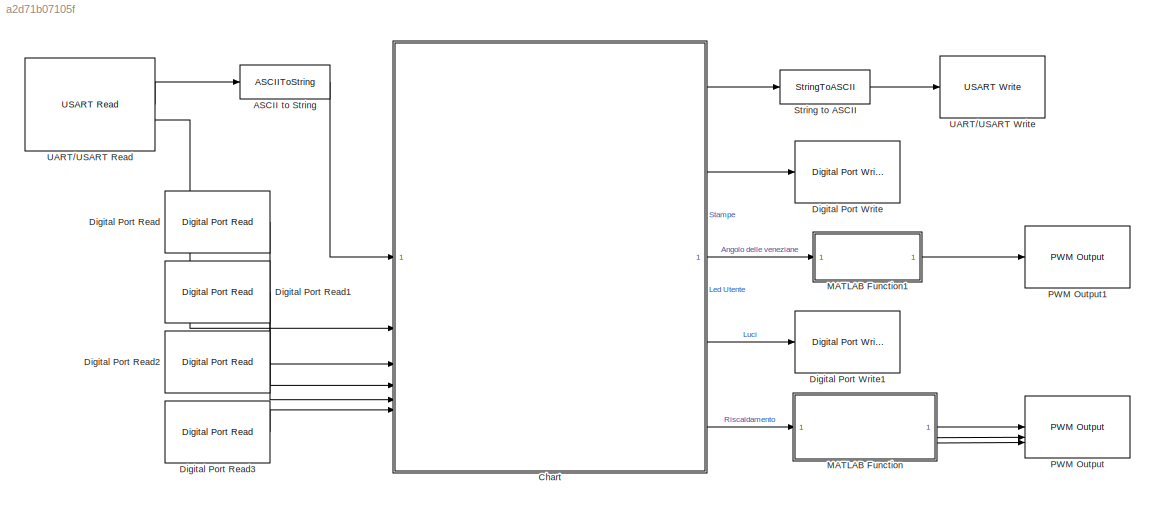
MODEL slx_a2d71b07105f
KIND model
CONFIG AbsTol = auto
CONFIG EnableMultiTasking = on
CONFIG FixedStep = 0.5
CONFIG MaxStep = auto
CONFIG MinStep = auto
CONFIG RelTol = 1e-3
CONFIG SampleTimeConstraint = Unconstrained
CONFIG SolverName = FixedStepDiscrete
CONFIG StartTime = 0.0
CONFIG StopTime = 300
BLOCK [ASCIIToString] ASCII to String
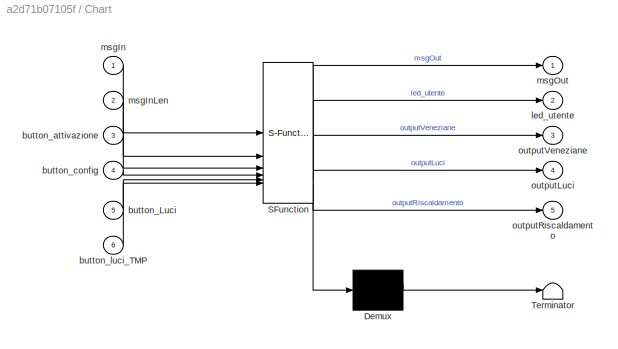
BLOCK [SubSystem] Chart
  ErrorFcn = Stateflow.Translate.translate
  PermitHierarchicalResolution = ExplicitOnly
  SFBlockType = Chart
  TreatAsAtomicUnit = on
BLOCK [Demux] Chart/ Demux 
  Outputs = 1
BLOCK [S-Function] Chart/ SFunction 
  EnableBusSupport = on
  FunctionName = sf_sfun
  PortCounts = [6 6]
  SFcnIsStateOwnerBlock = off
  SFunctionDeploymentMode = off
  Tag = Stateflow S-Function 3
BLOCK [Terminator] Chart/ Terminator 
BLOCK [Inport] Chart/button_Luci
  Port = 5
BLOCK [Inport] Chart/button_attivazione
  Port = 3
BLOCK [Inport] Chart/button_config
  Port = 4
BLOCK [Inport] Chart/button_luci_TMP
  Port = 6
BLOCK [Outport] Chart/led_utente
  Port = 2
BLOCK [Inport] Chart/msgIn
BLOCK [Inport] Chart/msgInLen
  Port = 2
BLOCK [Outport] Chart/msgOut
BLOCK [Outport] Chart/outputLuci
  Port = 4
BLOCK [Outport] Chart/outputRiscaldamento
  Port = 5
BLOCK [Outport] Chart/outputVeneziane
  Port = 3
BLOCK [Reference] Digital Port Read  REF=stm32f4xxblockslib/Digital Port Read
  LibrarySourceBlock = stm32g4xxblockslib/Digital Port Read
  SourceBlock = stm32f4xxblockslib/Digital Port Read
  SourceType = stm32cube.blocks.DigitalPortRead
BLOCK [Reference] Digital Port Read1  REF=stm32f4xxblockslib/Digital Port Read
  LibrarySourceBlock = stm32g4xxblockslib/Digital Port Read
  SourceBlock = stm32f4xxblockslib/Digital Port Read
  SourceType = stm32cube.blocks.DigitalPortRead
BLOCK [Reference] Digital Port Read2  REF=stm32f4xxblockslib/Digital Port Read
  LibrarySourceBlock = stm32g4xxblockslib/Digital Port Read
  SourceBlock = stm32f4xxblockslib/Digital Port Read
  SourceType = stm32cube.blocks.DigitalPortRead
BLOCK [Reference] Digital Port Read3  REF=stm32f4xxblockslib/Digital Port Read
  LibrarySourceBlock = stm32g4xxblockslib/Digital Port Read
  SourceBlock = stm32f4xxblockslib/Digital Port Read
  SourceType = stm32cube.blocks.DigitalPortRead
BLOCK [Reference] Digital Port Write  REF=stm32f4xxblockslib/Digital Port Write
  LibrarySourceBlock = stm32g4xxblockslib/Digital Port Write
  SourceBlock = stm32f4xxblockslib/Digital Port Write
  SourceType = stm32cube.blocks.DigitalPortWrite
BLOCK [Reference] Digital Port Write1  REF=stm32f4xxblockslib/Digital Port Write
  LibrarySourceBlock = stm32g4xxblockslib/Digital Port Write
  SourceBlock = stm32f4xxblockslib/Digital Port Write
  SourceType = stm32cube.blocks.DigitalPortWrite
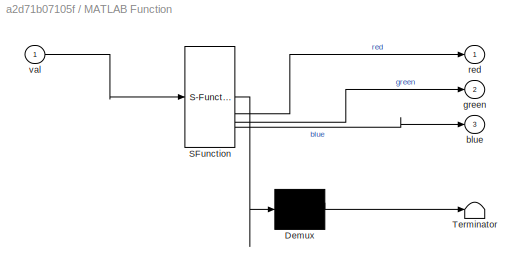
BLOCK [SubSystem] MATLAB Function
  ErrorFcn = Stateflow.Translate.translate
  PermitHierarchicalResolution = ExplicitOnly
  SFBlockType = MATLAB Function
  TreatAsAtomicUnit = on
BLOCK [Demux] MATLAB Function/ Demux 
  Outputs = 1
BLOCK [S-Function] MATLAB Function/ SFunction 
  EnableBusSupport = on
  FunctionName = sf_sfun
  PortCounts = [1 4]
  SFcnIsStateOwnerBlock = off
  SFunctionDeploymentMode = off
  Tag = Stateflow S-Function 2
BLOCK [Terminator] MATLAB Function/ Terminator 
BLOCK [Outport] MATLAB Function/blue
  Port = 3
BLOCK [Outport] MATLAB Function/green
  Port = 2
BLOCK [Outport] MATLAB Function/red
BLOCK [Inport] MATLAB Function/val
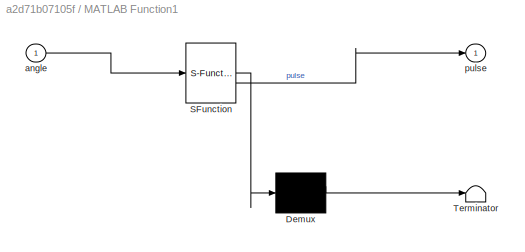
BLOCK [SubSystem] MATLAB Function1
  ErrorFcn = Stateflow.Translate.translate
  PermitHierarchicalResolution = ExplicitOnly
  SFBlockType = MATLAB Function
  TreatAsAtomicUnit = on
BLOCK [Demux] MATLAB Function1/ Demux 
  Outputs = 1
BLOCK [S-Function] MATLAB Function1/ SFunction 
  EnableBusSupport = on
  FunctionName = sf_sfun
  PortCounts = [1 2]
  SFcnIsStateOwnerBlock = off
  SFunctionDeploymentMode = off
  Tag = Stateflow S-Function 1
BLOCK [Terminator] MATLAB Function1/ Terminator 
BLOCK [Inport] MATLAB Function1/angle
BLOCK [Outport] MATLAB Function1/pulse
BLOCK [Reference] PWM Output  REF=stm32g4xxblockslib/PWM Output
  SourceBlock = stm32g4xxblockslib/PWM Output
  SourceType = stm32cube.blocks.PWMOutput
BLOCK [Reference] PWM Output1  REF=stm32g4xxblockslib/PWM Output
  SourceBlock = stm32g4xxblockslib/PWM Output
  SourceType = stm32cube.blocks.PWMOutput
BLOCK [StringToASCII] String to ASCII
  OutputVectorSize = 127
BLOCK [Reference] UART//USART Read  REF=stm32blockslib/UART//USART Read
  LibrarySourceBlock = stm32g4xxblockslib/UART//USART Read
  SourceBlock = stm32blockslib/UART//USART Read
  SourceType = stm32cube.blocks.UARTRead
BLOCK [Reference] UART//USART Write  REF=stm32blockslib/UART//USART Write
  LibrarySourceBlock = stm32g4xxblockslib/UART//USART Write
  SourceBlock = stm32blockslib/UART//USART Write
  SourceType = stm32cube.blocks.UARTWrite
LINE ASCII to String:1 -> Chart:1
LINE Chart:1 -> String to ASCII:1
LINE Chart:2 -> Digital Port Write:1
LINE Chart:3 -> MATLAB Function1:1
LINE Chart:4 -> Digital Port Write1:1
LINE Chart:5 -> MATLAB Function:1
LINE Digital Port Read1:1 -> Chart:4
LINE Digital Port Read2:1 -> Chart:5
LINE Digital Port Read3:1 -> Chart:6
LINE Digital Port Read:1 -> Chart:3
LINE MATLAB Function1:1 -> PWM Output1:1
LINE MATLAB Function:1 -> PWM Output:1
LINE MATLAB Function:2 -> PWM Output:2
LINE MATLAB Function:3 -> PWM Output:3
LINE String to ASCII:1 -> UART//USART Write:1
LINE UART//USART Read:1 -> ASCII to String:1
LINE UART//USART Read:2 -> Chart:2
CHART MATLAB Function1 states=1 transitions=1
  STATE_LABEL 'eML_blk_kernel()'
  STATE_LABEL 'SCRIPT:\nfunction pulse = angleToPulse(angle)\n    pulse = ((angle/180)*2000) + 500;\nend\n'
CHART MATLAB Function states=1 transitions=1
  STATE_LABEL 'eML_blk_kernel()'
  STATE_LABEL 'SCRIPT:\nfunction [red,green,blue] = outputLedRGD(val)\n    switch val\n        case 0\n            red = 0;\n            green = 0;\n            blue = 255;\n        case 1\n            red = 155;\n            green = 0;\n            blue = 155;\n        case 2\n            red = 255;\n            green = 90;\n            blue = 0;\n        case 3\n            red = 255;\n            green = 20;\n            blue ...<+176ch>'
CHART Chart states=64 transitions=107
  STATE_LABEL 'outString = msgConfigurazione'
  STATE_LABEL 'SCRIPT:\nfunction outString = msgConfigurazione\nclrscr = sprintf("\\033[0;0H\\033[2J"); \ncrlf = sprintf(\'<path>');\n\noutString = clrscr + "Configurazione:" + crlf + ...\n    "1. Regolazione veneziane" + crlf + ...\n    "2. Accensione luci" + crlf + ...\n    "3. Configurazione riscaldamento" + crlf + ...\n    "4. Salva" + crlf + ...;\n    "5. Esci" + crlf;\nend\n\n\n \n'
  STATE_LABEL 'outString = msgRegolazioneVeneziane'
  STATE_LABEL 'SCRIPT:\nfunction outString = msgRegolazioneVeneziane\nclrscr = sprintf("\\033[0;0H\\033[2J"); \ncrlf = sprintf(\'<path>');\n\noutString = clrscr + "Regolazione Veneziane." + crlf + ...\n   "Inserire un valore da 0 a 180." + crlf + ...\n   "(Risoluzione di 20)" + crlf;\nend\n\n\n \n'
  STATE_LABEL 'outString = msgAccensioneLuci'
  STATE_LABEL 'SCRIPT:\nfunction outString = msgAccensioneLuci\nclrscr = sprintf("\\033[0;0H\\033[2J"); \ncrlf = sprintf(\'<path>');\n\noutString = clrscr + "Configurazione luci." + crlf + ...\n    "Inserire:" + crlf + ...\n    "1. Luci accese." + crlf + ...\n    "2. Luci spente." + crlf;\nend\n\n\n \n'
  STATE_LABEL 'outString = msgConfigurazioneRiscaldamento'
  STATE_LABEL 'SCRIPT:\nfunction outString = msgConfigurazioneRiscaldamento\nclrscr = sprintf("\\033[0;0H\\033[2J"); \ncrlf = sprintf(\'<path>');\n\noutString = clrscr + "Configurazione riscaldamento." + crlf + ...\n    "Inserire un valore compreso tra 16 e 30." + crlf + ...\n    "(Risoluzione di 1)" + crlf;\nend\n\n\n \n'
  STATE_LABEL 'outString = msgErroreUscita'
  STATE_LABEL 'SCRIPT:\nfunction outString = msgErroreUscita\nclrscr = sprintf("\\033[0;0H\\033[2J"); \ncrlf = sprintf(\'<path>');\n\noutString = clrscr + "Configurazione valida non presente." + crlf + ...\n            "Si prega di inserirne una." + crlf;\nend\n\n\n \n'
  STATE_LABEL 'outString = msgAggiornamentoStato(val_riscaldamento, val_veneziane, val_luci, val_temporizzazione)'
  STATE_LABEL 'SCRIPT:\nfunction outString = msgAggiornamentoStato(val_riscaldamento, val_veneziane, val_luci, val_temporizzazione)\n    clrscr = sprintf("\\033[0;0H\\033[2J"); \n    crlf = sprintf(\'<path>');\n\n    val1 = convertitoreDoubleToString(val_veneziane)\n    str_veneziane = "Veneziane: " + val1 + " gradi.";\n\n    str_luci = "";\n    if val_luci == 1 || val_luci == 3\n        str_luci = "Luci accese.";\n    else\n   ...<+1493ch>'
  STATE_LABEL 'outString = msgUscita'
  STATE_LABEL 'SCRIPT:\nfunction outString = msgUscita\nclrscr = sprintf("\\033[0;0H\\033[2J");\ncrlf = sprintf(\'<path>');\n\noutString = clrscr + "Uscita in corso." + crlf + ...\n            "Verranno ripristinate le configurazioni precedenti." + crlf;\nend\n\n\n \n'
  STATE_LABEL 'outString = msgErrore'
  STATE_LABEL 'SCRIPT:\nfunction outString = msgErrore\nclrscr = sprintf("\\033[0;0H\\033[2J");\ncrlf = sprintf(\'<path>');\n\noutString = clrscr + "Valore inserito non valido." + crlf;\nend\n\n\n \n'
  STATE_LABEL 'outString = msgSalvataggioConfigurazione'
  STATE_LABEL 'SCRIPT:\nfunction outString = msgSalvataggioConfigurazione\nclrscr = sprintf("\\033[0;0H\\033[2J"); \ncrlf = sprintf(\'<path>');\n\noutString = clrscr + "Configurazione salvata con successo." + crlf;\nend\n\n\n \n'
  STATE_LABEL 'outString = msgConfigurazioneTemporizzazione'
  STATE_LABEL 'SCRIPT:\nfunction outString = msgConfigurazioneTemporizzazione\nclrscr = sprintf("\\033[0;0H\\033[2J"); \ncrlf = sprintf(\'<path>');\n\noutString = clrscr + "Configurazione temporizzazione luci." + crlf + ...\n    "Inserire un valore compreso tra 5 e 30." + crlf + ...\n    "Inserire 0 per disattivarla." + crlf;\nend\n\n\n \n'
  STATE_LABEL 'val = convertitore(str)'
  STATE_LABEL "SCRIPT:\nfunction val = convertitore(str)\n\n    num = 0;\n    str = char(str);\n    isFraction = false;\n    fractionDivisor = 1;\n\n    for i = 1:length(str)\n        ch = str(i);\n        \n        if ch == ' '\n            break; \n        elseif ch == '.'\n            if isFraction\n                val = -1;\n                return;\n            end\n            isFraction = true;\n            continue;\n       ...<+330ch>"
  STATE_LABEL 'result = checkValoreRiscaldamento(str)'
  STATE_LABEL "SCRIPT:\nfunction result = checkValoreRiscaldamento(str)\n\n    num = 0;\n    str = char(str);\n    for i = 1:length(str)\n        if str(i) == ' '\n            break;\n        end\n        d = double(str(i)) - 48;\n        if d < 0 || d > 9\n            result = false;\n            return;\n        end\n        num = num * 10 + d;\n    end\n\n    result = ~isnan(num) && mod(num, 1) == 0 && num >= 16 && num <= 30;...<+9ch>"
  STATE_LABEL 'result = checkValoreTemporizzazione(str)'
  STATE_LABEL "SCRIPT:\nfunction result = checkValoreTemporizzazione(str)\n  \n    num = 0;\n    str = char(str);\n    isFraction = false;\n    fractionDivisor = 1;\n\n    for i = 1:length(str)\n        ch = str(i);\n        \n        if ch == ' '\n            break; \n        elseif ch == '.'\n            if isFraction\n                result = false;\n                return;\n            end\n            isFraction = true;\n    ...<+416ch>"
  STATE_LABEL 'result = checkValoreVeneziane(str)'
  STATE_LABEL "SCRIPT:\nfunction result = checkValoreVeneziane(str)\n    \n    num = 0;\n    str = char(str);\n    for i = 1:length(str)\n        if str(i) == ' '\n            break;\n        end\n        d = double(str(i)) - 48;\n        if d < 0 || d > 9\n            result = false;\n            return;\n        end\n        num = num * 10 + d;\n    end\n\n    result = ~isnan(num) && mod(num, 20) == 0 && num >= 0 && num <= 180...<+15ch>"
  STATE_LABEL 'outRange = rangeRiscaldamento(val)'
  STATE_LABEL 'SCRIPT:\nfunction outRange = rangeRiscaldamento(val)\n\n    if val >= 16 && val <= 18\n            outRange = 0;\n    elseif val >= 19 && val <= 21\n            outRange = 1;\n    elseif val >= 22 && val <= 24\n            outRange = 2;\n    elseif val >= 25 && val <= 27\n            outRange = 3;\n    elseif val >= 28 && val <= 30\n            outRange = 4;\n    else \n        outRange = -1\n    end\n\nend\n'
  STATE_LABEL 'Inizializzazione'
  STATE_LABEL 'Stato_Attivo'
  STATE_LABEL 'Gestione_Pulsanti_Luci'
  STATE_LABEL 'Stato_di_Attesa'
  STATE_LABEL 'Gestore_pulsante_Luci_TMP'
  STATE_LABEL 'Caso_luci_accese\nen: luci = 3;\ndu:\nif luci ~= 3\n    stopTimer = true;\nend\n'
  STATE_LABEL 'Caso_luci_spente\nen: luci = 3;\n outputLuci = ON;\ndu:\n if luci ~= 3\n     stopTimer = true;\n end'
  STATE_LABEL 'Fine_Tempo\nen: luci = 2;\n outputLuci = OFF;\n'
  STATE_LABEL '{stopTimer = false}'
  STATE_LABEL '[luci == 1]'
CHART  states=0 transitions=0
CHART  states=0 transitions=0
CHART  states=0 transitions=0
note: 10 file-system paths scrubbed to <path> (not preserved elsewhere — flat text is the only slx artifact)
